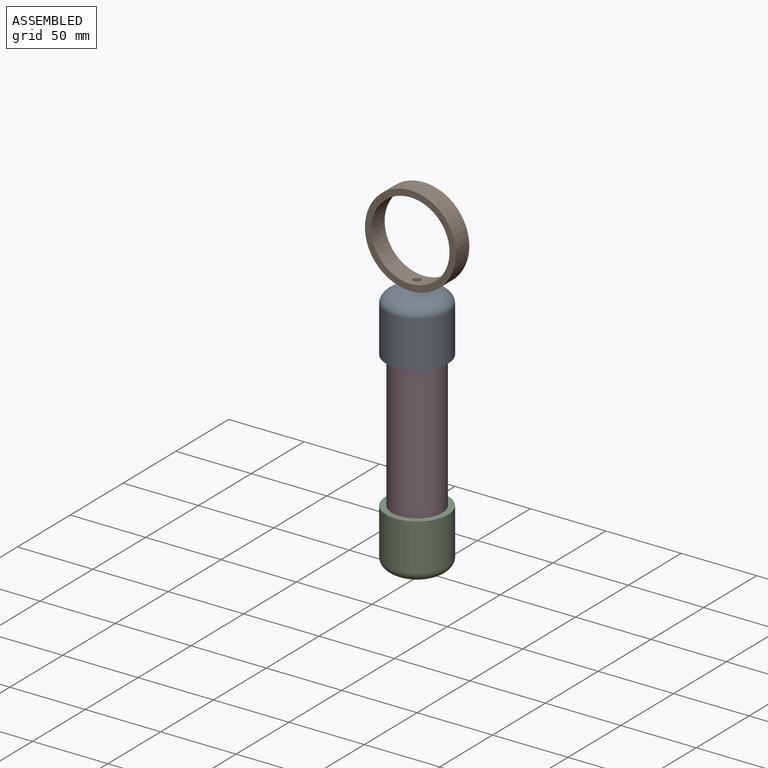
[diagram: assembled view]
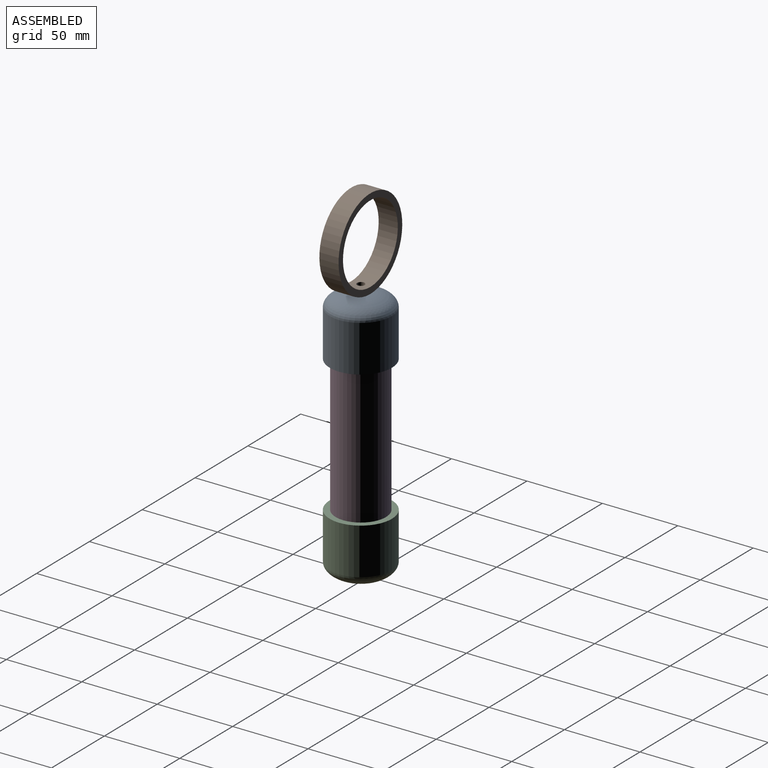
[diagram: assembled view, second angle]
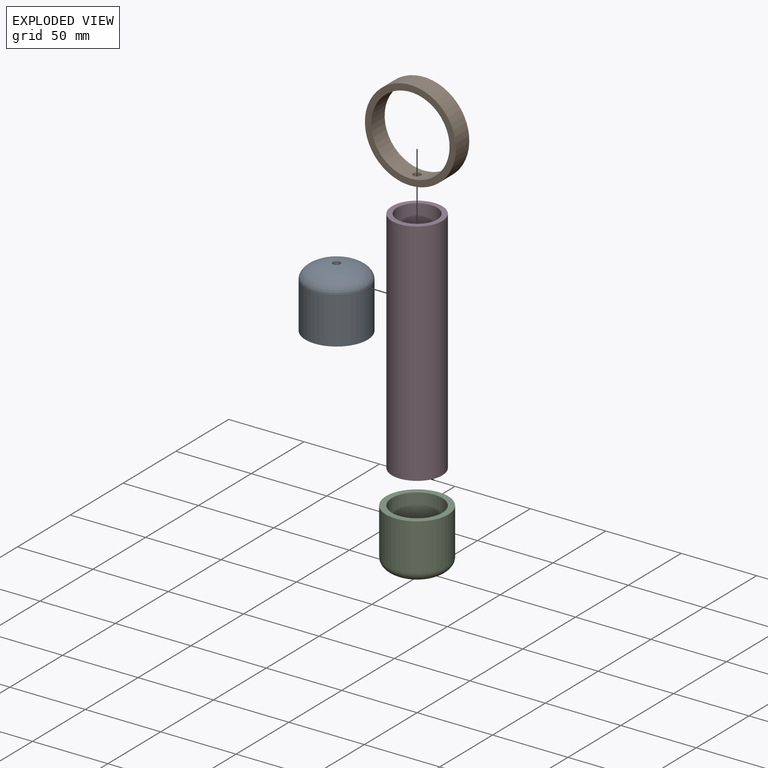
[diagram: exploded view]
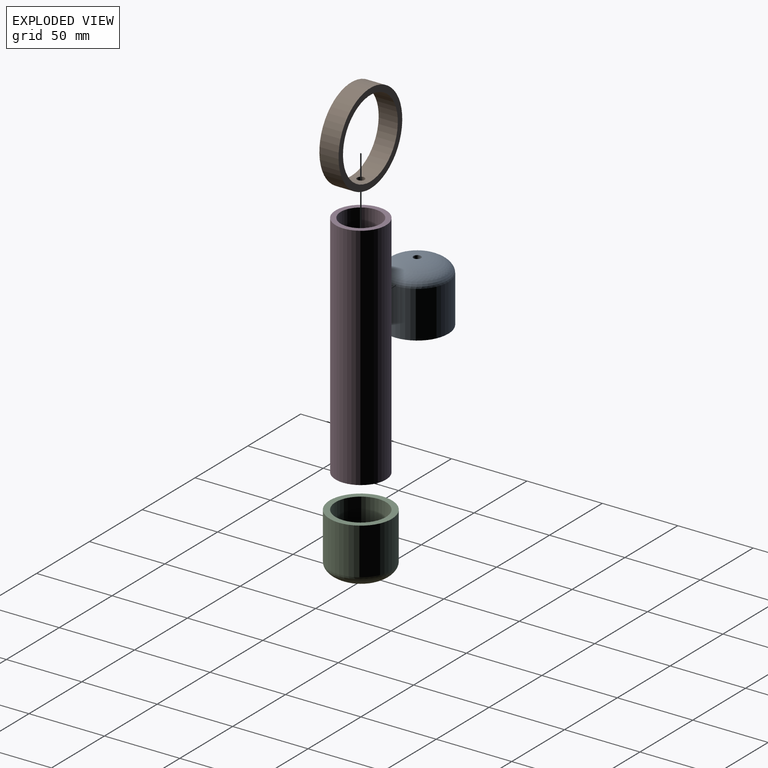
[diagram: exploded view, second angle]
ASSEMBLY  parts=4 mates=3
PART A: 6 faces, bbox 41.3x41.3x40.4 mm
  f0: revolved ~33.4x33.4mm, area 1004.9mm2, adj f2,f5
  f1: revolved ~41.28x41.28mm, area 1771mm2, adj f4,f5
  f2: cylinder r=16.7mm len=33.4mm, axis (0,0,-1), area 3248.3mm2, adj f0,f3
  f3: plane 41.28x41.28mm, normal (0,0,-1), area 461.8mm2, adj f2,f4
  f4: cylinder r=20.64mm len=41.28mm, axis (0,0,-1), area 4014.1mm2, adj f1,f3
  f5: cylinder r=2.49mm len=4.98mm, axis (0,0,-1), area 61.7mm2, adj f0,f1
PART B: 5 faces, bbox 60.3x12.7x60.3 mm
  f0: cylinder r=25.97mm len=51.94mm, axis (0,1,0), area 2053mm2, adj f2,f3,f4
  f1: cylinder r=30.16mm len=60.33mm, axis (0,1,0), area 2387.4mm2, adj f2,f3,f4
  f2: plane 60.33x60.33mm, normal (0,-1,0), area 739.1mm2, adj f0,f1
  f3: plane 60.33x60.33mm, normal (0,1,0), area 739.1mm2, adj f0,f1
  f4: cylinder r=2.49mm len=4.98mm, axis (0,0,-1), area 65.7mm2, adj f0,f1
PART C: same geometry as A
PART D: 4 faces, bbox 33.4x33.4x152.4 mm
  f0: cylinder r=13.32mm len=152.4mm, axis (0,0,-1), area 12756.9mm2, adj f2,f3
  f1: cylinder r=16.7mm len=152.4mm, axis (0,0,-1), area 15991.7mm2, adj f2,f3
  f2: plane 33.4x33.4mm, normal (0,0,1), area 318.6mm2, adj f0,f1
  f3: plane 33.4x33.4mm, normal (0,0,-1), area 318.6mm2, adj f0,f1
PLACE A t=(0,0,-1.52)mm
PLACE B t=(0,0,-1.57)mm
PLACE C rot(axis=(1,0,0),180deg) t=(0,0,1.52)mm
PLACE D at identity fixed
MATE fastened A.f5 <-> B.f4  axis (0,0,-1) through (0,0,85.66)mm
MATE fastened C.f2 <-> D.f0  axis (0,0,1) through (0,0,-76.2)mm
MATE fastened A.f2 <-> D.f0  axis (0,0,-1) through (0,0,76.2)mm
